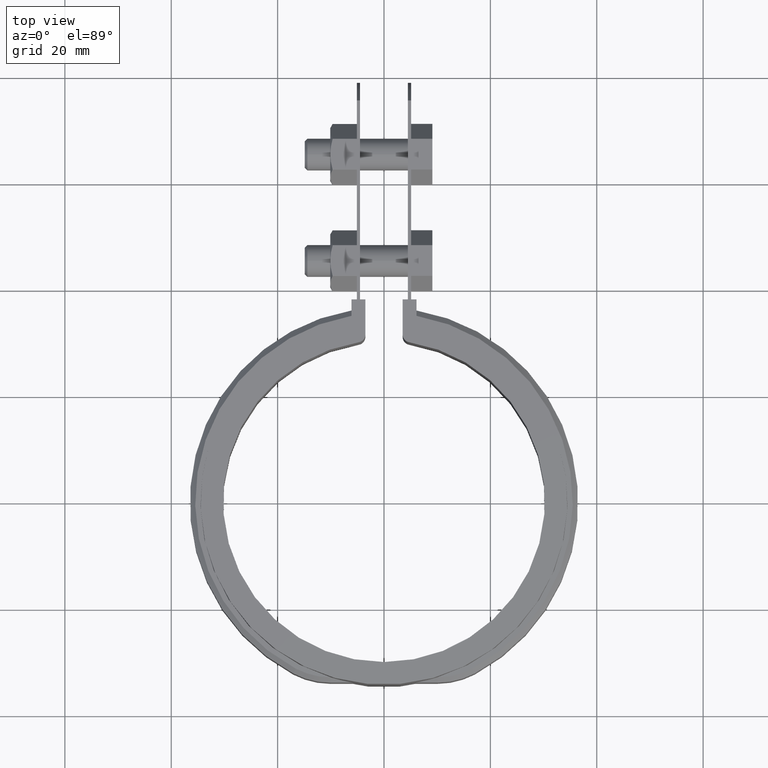
[diagram: clean part render]
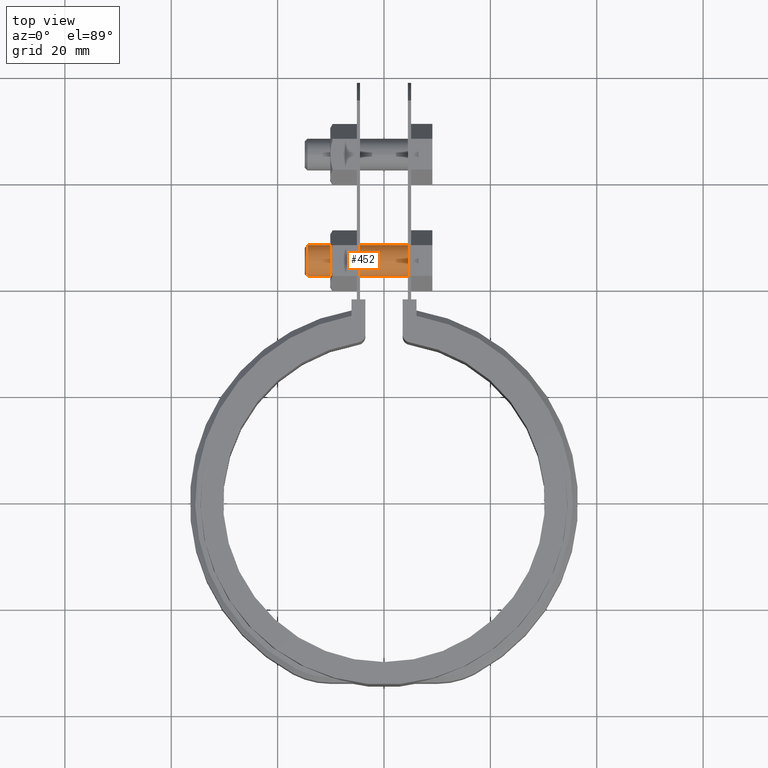
[diagram: same view with one face highlighted and labeled with its STEP entity id]
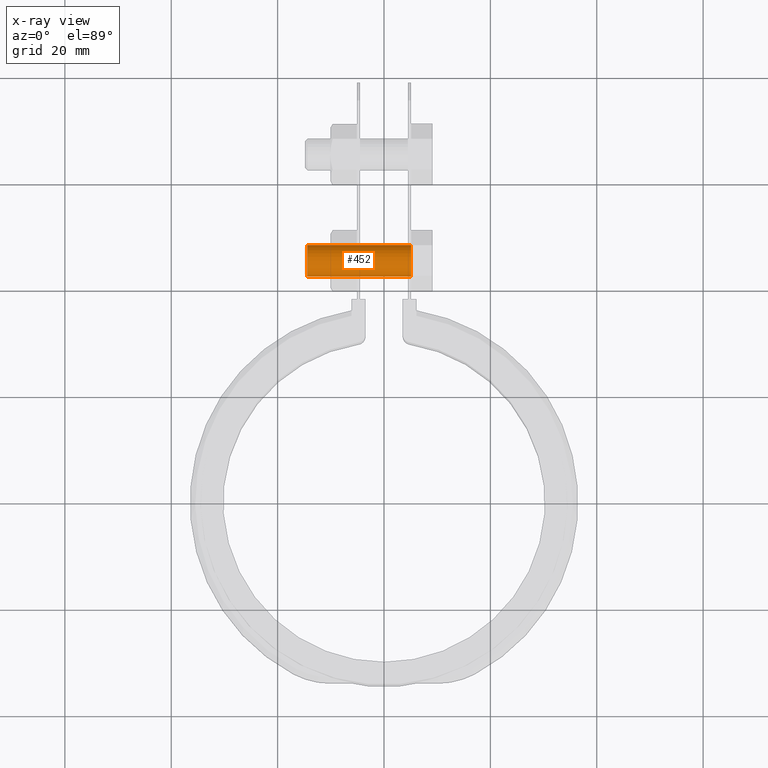
[diagram: x-ray of the same camera — body ghosted, the highlighted face saturated]
A machine part, top view. The second image highlights one B-rep face of the part: STEP entity #452.
The next image is the same camera in x-ray: the body ghosted, the highlighted face saturated — about 0% of this face is hidden behind the body in this view.
In plain terms, the highlighted cylindrical surface (bore or boss wall) has radius 3 mm, axis along (1, 0, 0).
Its self-contained STEP definition (entity closure, byte-faithful):
#452 = ADVANCED_FACE( '', ( #813, #814 ), #815, .T. );
#813 = FACE_OUTER_BOUND( '', #1773, .T. );
#814 = FACE_OUTER_BOUND( '', #1774, .T. );
#815 = CYLINDRICAL_SURFACE( '', #1775, 3.00000000000000 );
#1773 = EDGE_LOOP( '', ( #3956 ) );
#1774 = EDGE_LOOP( '', ( #3957 ) );
#1775 = AXIS2_PLACEMENT_3D( '', #3958, #3959, #3960 );
#3956 = ORIENTED_EDGE( '', *, *, #4812, .T. );
#3957 = ORIENTED_EDGE( '', *, *, #4806, .F. );
#3958 = CARTESIAN_POINT( '', ( 13.5487843911358, 45.4015111874220, -12.5000000000000 ) );
#3959 = DIRECTION( '', ( 1.00000000000000, 4.76891502080913E-107, 0.000000000000000 ) );
#3960 = DIRECTION( '', ( 0.000000000000000, 0.000000000000000, 1.00000000000000 ) );
#4806 = EDGE_CURVE( '', #5578, #5578, #5579, .F. );
#4812 = EDGE_CURVE( '', #5588, #5588, #5589, .T. );
#5578 = VERTEX_POINT( '', #8544 );
#5579 = CIRCLE( '', #8545, 3.00000000000000 );
#5588 = VERTEX_POINT( '', #8559 );
#5589 = CIRCLE( '', #8560, 3.00000000000000 );
#8544 = CARTESIAN_POINT( '', ( 5.10000000000001, 45.4015111874220, -9.50000000000002 ) );
#8545 = AXIS2_PLACEMENT_3D( '', #9408, #9409, #9410 );
#8559 = CARTESIAN_POINT( '', ( -14.4000000000000, 45.4015111874220, -15.5000000000000 ) );
#8560 = AXIS2_PLACEMENT_3D( '', #9416, #9417, #9418 );
#9408 = CARTESIAN_POINT( '', ( 5.10000000000001, 45.4015111874220, -12.5000000000000 ) );
#9409 = DIRECTION( '', ( -1.00000000000000, -4.76891502080913E-107, 0.000000000000000 ) );
#9410 = DIRECTION( '', ( 0.000000000000000, 0.000000000000000, 1.00000000000000 ) );
#9416 = CARTESIAN_POINT( '', ( -14.4000000000000, 45.4015111874220, -12.5000000000000 ) );
#9417 = DIRECTION( '', ( 1.00000000000000, 4.76891502080913E-107, 0.000000000000000 ) );
#9418 = DIRECTION( '', ( 0.000000000000000, 0.000000000000000, -1.00000000000000 ) );